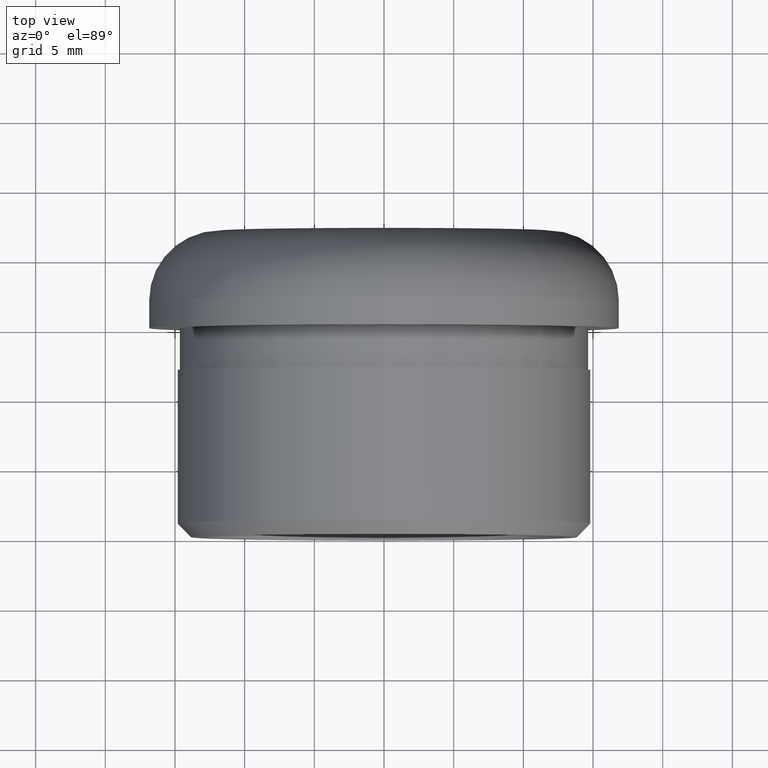
[diagram: clean part render]
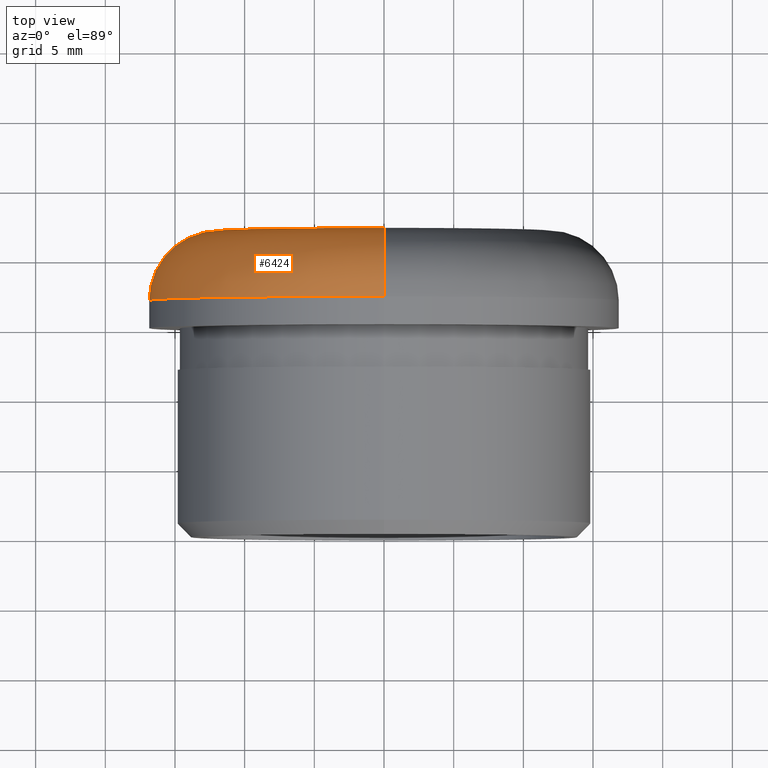
[diagram: same view with one face highlighted and labeled with its STEP entity id]
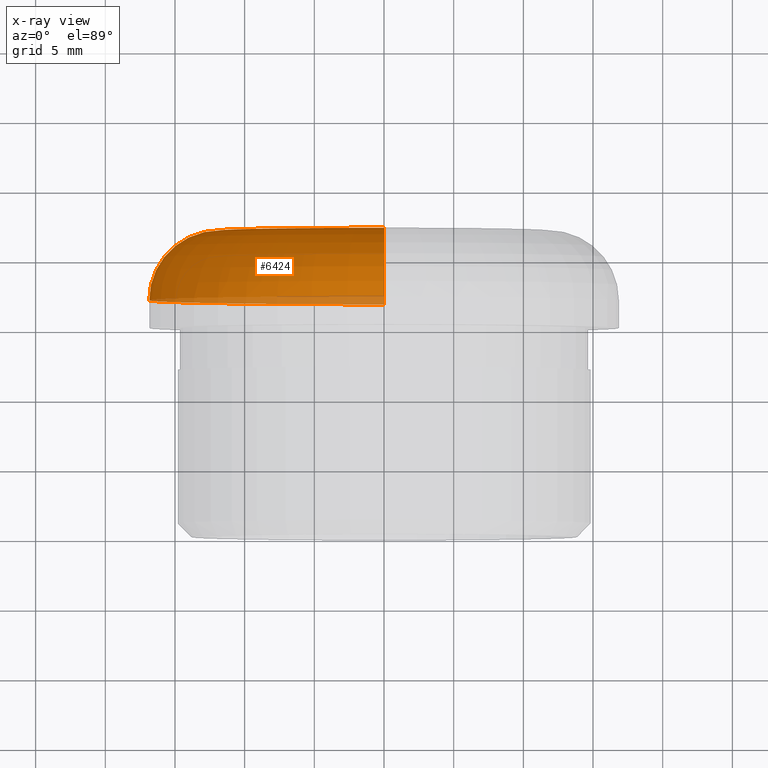
[diagram: x-ray of the same camera — body ghosted, the highlighted face saturated]
A machine part, top view. The second image highlights one B-rep face of the part: STEP entity #6424.
The next image is the same camera in x-ray: the body ghosted, the highlighted face saturated — about 9% of this face is hidden behind the body in this view.
In plain terms, the highlighted toroidal blend (fillet) surface has major radius 11.85 mm and minor (blend) radius 5 mm.
Its self-contained STEP definition (entity closure, byte-faithful):
#282 = CARTESIAN_POINT ( 'NONE',  ( 0.0000000000000000000, 22.00000000000000000, -11.85000000000000300 ) ) ;
#422 = CARTESIAN_POINT ( 'NONE',  ( 0.0000000000000000000, 22.00000000000000000, 0.0000000000000000000 ) ) ;
#755 = ORIENTED_EDGE ( 'NONE', *, *, #3649, .T. ) ;
#979 = CIRCLE ( 'NONE', #13363, 11.85000000000000300 ) ;
#1225 = CIRCLE ( 'NONE', #8579, 16.85000000000000500 ) ;
#1438 = CARTESIAN_POINT ( 'NONE',  ( 0.0000000000000000000, 16.99999999999999600, 0.0000000000000000000 ) ) ;
#1956 = AXIS2_PLACEMENT_3D ( 'NONE', #5843, #4726, #2524 ) ;
#2239 = DIRECTION ( 'NONE',  ( 0.0000000000000000000, 0.0000000000000000000, -1.000000000000000000 ) ) ;
#2309 = CARTESIAN_POINT ( 'NONE',  ( 1.757368156776452400E-015, 22.00000000000000000, 11.85000000000000300 ) ) ;
#2524 = DIRECTION ( 'NONE',  ( -1.224646799147353200E-016, 0.0000000000000000000, -1.000000000000000000 ) ) ;
#2621 = DIRECTION ( 'NONE',  ( 0.0000000000000000000, 0.0000000000000000000, -1.000000000000000000 ) ) ;
#3322 = FACE_OUTER_BOUND ( 'NONE', #12516, .T. ) ;
#3649 = EDGE_CURVE ( 'NONE', #10256, #9394, #11744, .T. ) ;
#4252 = AXIS2_PLACEMENT_3D ( 'NONE', #1438, #5890, #2621 ) ;
#4726 = DIRECTION ( 'NONE',  ( 1.000000000000000000, 0.0000000000000000000, -1.224646799147353200E-016 ) ) ;
#5188 = DIRECTION ( 'NONE',  ( 0.0000000000000000000, 0.0000000000000000000, 1.000000000000000000 ) ) ;
#5843 = CARTESIAN_POINT ( 'NONE',  ( 1.451206456989613900E-015, 16.99999999999999600, 11.85000000000000300 ) ) ;
#5890 = DIRECTION ( 'NONE',  ( -0.0000000000000000000, -1.000000000000000000, -0.0000000000000000000 ) ) ;
#6397 = EDGE_CURVE ( 'NONE', #11466, #8628, #7935, .T. ) ;
#6424 = ADVANCED_FACE ( 'NONE', ( #3322 ), #8289, .T. ) ;
#6720 = AXIS2_PLACEMENT_3D ( 'NONE', #7604, #9684, #5188 ) ;
#7107 = DIRECTION ( 'NONE',  ( -0.0000000000000000000, -1.000000000000000000, -0.0000000000000000000 ) ) ;
#7604 = CARTESIAN_POINT ( 'NONE',  ( 0.0000000000000000000, 16.99999999999999600, -11.85000000000000300 ) ) ;
#7935 = CIRCLE ( 'NONE', #1956, 5.000000000000000900 ) ;
#8289 = TOROIDAL_SURFACE ( 'NONE', #4252, 11.85000000000000300, 5.000000000000000900 ) ;
#8579 = AXIS2_PLACEMENT_3D ( 'NONE', #9139, #12433, #2239 ) ;
#8628 = VERTEX_POINT ( 'NONE', #8861 ) ;
#8861 = CARTESIAN_POINT ( 'NONE',  ( 2.063529856563290600E-015, 16.99999999999999600, 16.85000000000000500 ) ) ;
#9139 = CARTESIAN_POINT ( 'NONE',  ( 0.0000000000000000000, 16.99999999999999600, 0.0000000000000000000 ) ) ;
#9394 = VERTEX_POINT ( 'NONE', #12254 ) ;
#9546 = EDGE_CURVE ( 'NONE', #11466, #10256, #979, .T. ) ;
#9684 = DIRECTION ( 'NONE',  ( -1.000000000000000000, 0.0000000000000000000, 0.0000000000000000000 ) ) ;
#10175 = EDGE_CURVE ( 'NONE', #8628, #9394, #1225, .T. ) ;
#10256 = VERTEX_POINT ( 'NONE', #282 ) ;
#10648 = ORIENTED_EDGE ( 'NONE', *, *, #6397, .F. ) ;
#10861 = ORIENTED_EDGE ( 'NONE', *, *, #9546, .T. ) ;
#11466 = VERTEX_POINT ( 'NONE', #2309 ) ;
#11566 = DIRECTION ( 'NONE',  ( 0.0000000000000000000, 0.0000000000000000000, -1.000000000000000000 ) ) ;
#11744 = CIRCLE ( 'NONE', #6720, 5.000000000000000900 ) ;
#12254 = CARTESIAN_POINT ( 'NONE',  ( 0.0000000000000000000, 16.99999999999999600, -16.85000000000000500 ) ) ;
#12433 = DIRECTION ( 'NONE',  ( -0.0000000000000000000, -1.000000000000000000, -0.0000000000000000000 ) ) ;
#12516 = EDGE_LOOP ( 'NONE', ( #10648, #10861, #755, #12705 ) ) ;
#12705 = ORIENTED_EDGE ( 'NONE', *, *, #10175, .F. ) ;
#13363 = AXIS2_PLACEMENT_3D ( 'NONE', #422, #7107, #11566 ) ;